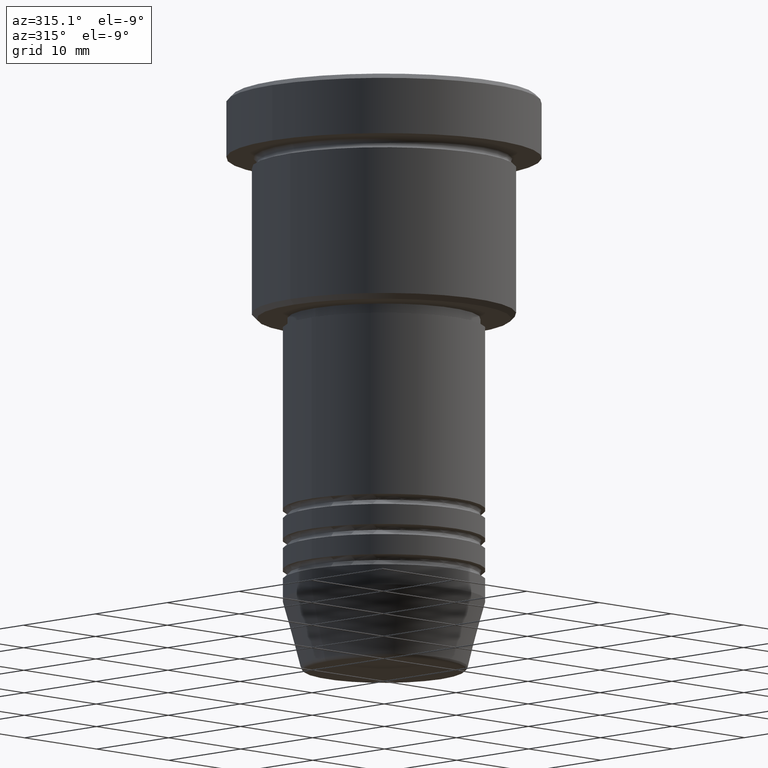
[diagram: clean part render]
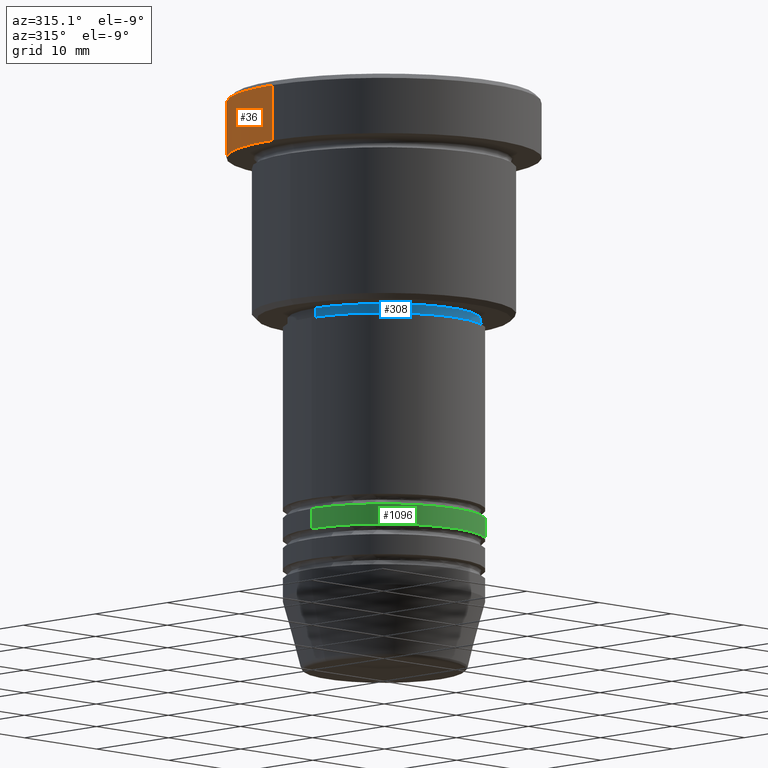
[diagram: same view with three faces highlighted in distinct colors, each labeled with its STEP entity id]
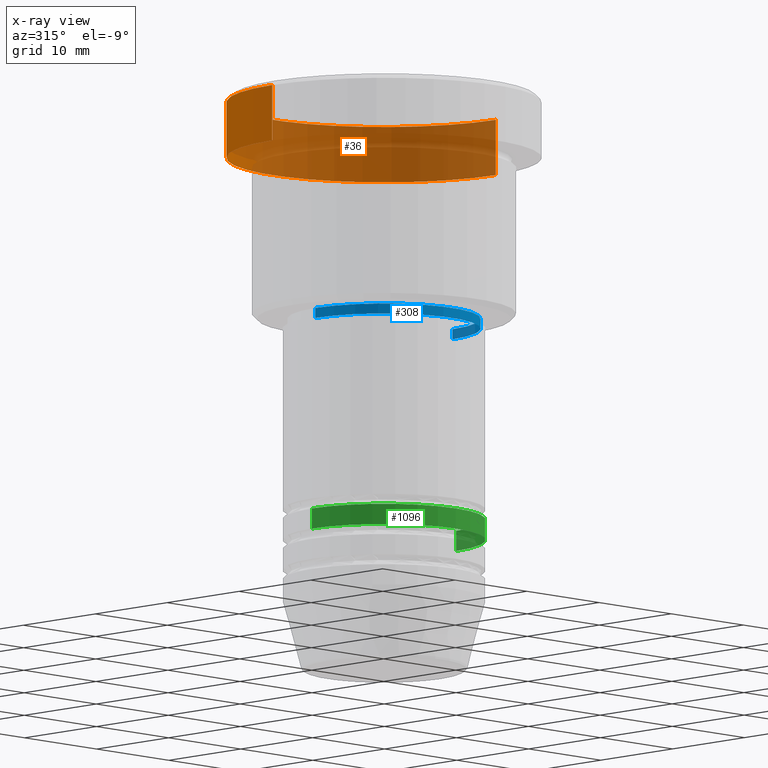
[diagram: x-ray of the same camera — body ghosted, the three highlighted faces saturated]
A machine part, auxiliary view with three faces highlighted in distinct colors.
The next image is the same camera in x-ray (body ghosted, the three faces saturated) — at least one of them is partly hidden behind the body in this view.
Their STEP definitions:

[orange] entity #36 — the highlighted cylindrical surface (partial cylindrical patch) has radius 15.5 mm, axis along (-0, -0, 1).
#24 = AXIS2_PLACEMENT_3D ( 'NONE', #816, #371, #904 ) ;
#36 = ADVANCED_FACE ( 'NONE', ( #630 ), #909, .T. ) ;
#48 = CARTESIAN_POINT ( 'NONE',  ( -15.50000000000000000, 1.898202538678397557E-15, 0.000000000000000000 ) ) ;
#128 = EDGE_CURVE ( 'NONE', #855, #678, #269, .T. ) ;
#137 = LINE ( 'NONE', #48, #1051 ) ;
#153 = VERTEX_POINT ( 'NONE', #1013 ) ;
#167 = AXIS2_PLACEMENT_3D ( 'NONE', #734, #1081, #999 ) ;
#204 = DIRECTION ( 'NONE',  ( 1.000000000000000000, 0.000000000000000000, 0.000000000000000000 ) ) ;
#222 = DIRECTION ( 'NONE',  ( -0.000000000000000000, -0.000000000000000000, 1.000000000000000000 ) ) ;
#261 = CARTESIAN_POINT ( 'NONE',  ( 0.000000000000000000, 0.000000000000000000, -0.4999999999999780176 ) ) ;
#269 = CIRCLE ( 'NONE', #1086, 15.50000000000000000 ) ;
#317 = EDGE_LOOP ( 'NONE', ( #531, #1020, #982, #670 ) ) ;
#371 = DIRECTION ( 'NONE',  ( -0.000000000000000000, -0.000000000000000000, 1.000000000000000000 ) ) ;
#373 = DIRECTION ( 'NONE',  ( 0.000000000000000000, 0.000000000000000000, -1.000000000000000000 ) ) ;
#388 = EDGE_CURVE ( 'NONE', #153, #855, #137, .T. ) ;
#413 = DIRECTION ( 'NONE',  ( -0.000000000000000000, -0.000000000000000000, 1.000000000000000000 ) ) ;
#416 = VERTEX_POINT ( 'NONE', #452 ) ;
#433 = EDGE_CURVE ( 'NONE', #416, #153, #786, .T. ) ;
#452 = CARTESIAN_POINT ( 'NONE',  ( 15.50000000000000000, 0.000000000000000000, -5.999999999999995559 ) ) ;
#489 = LINE ( 'NONE', #1040, #562 ) ;
#529 = CARTESIAN_POINT ( 'NONE',  ( 15.50000000000000000, 0.000000000000000000, -0.4999999999999780176 ) ) ;
#531 = ORIENTED_EDGE ( 'NONE', *, *, #433, .T. ) ;
#545 = EDGE_CURVE ( 'NONE', #416, #678, #489, .T. ) ;
#562 = VECTOR ( 'NONE', #222, 1000.000000000000000 ) ;
#630 = FACE_OUTER_BOUND ( 'NONE', #317, .T. ) ;
#670 = ORIENTED_EDGE ( 'NONE', *, *, #545, .F. ) ;
#678 = VERTEX_POINT ( 'NONE', #529 ) ;
#734 = CARTESIAN_POINT ( 'NONE',  ( 0.000000000000000000, 0.000000000000000000, 0.000000000000000000 ) ) ;
#786 = CIRCLE ( 'NONE', #24, 15.50000000000000000 ) ;
#816 = CARTESIAN_POINT ( 'NONE',  ( 0.000000000000000000, 0.000000000000000000, -5.999999999999995559 ) ) ;
#855 = VERTEX_POINT ( 'NONE', #1114 ) ;
#904 = DIRECTION ( 'NONE',  ( 1.000000000000000000, 0.000000000000000000, 0.000000000000000000 ) ) ;
#909 = CYLINDRICAL_SURFACE ( 'NONE', #167, 15.50000000000000000 ) ;
#982 = ORIENTED_EDGE ( 'NONE', *, *, #128, .T. ) ;
#999 = DIRECTION ( 'NONE',  ( 1.000000000000000000, 0.000000000000000000, 0.000000000000000000 ) ) ;
#1013 = CARTESIAN_POINT ( 'NONE',  ( -15.50000000000000000, 1.898202538678397557E-15, -5.999999999999995559 ) ) ;
#1020 = ORIENTED_EDGE ( 'NONE', *, *, #388, .T. ) ;
#1040 = CARTESIAN_POINT ( 'NONE',  ( 15.50000000000000000, 0.000000000000000000, 0.000000000000000000 ) ) ;
#1051 = VECTOR ( 'NONE', #413, 1000.000000000000000 ) ;
#1081 = DIRECTION ( 'NONE',  ( -0.000000000000000000, -0.000000000000000000, 1.000000000000000000 ) ) ;
#1086 = AXIS2_PLACEMENT_3D ( 'NONE', #261, #373, #204 ) ;
#1114 = CARTESIAN_POINT ( 'NONE',  ( -15.50000000000000000, 1.898202538678397557E-15, -0.4999999999999780176 ) ) ;

[blue] entity #308 — the highlighted cylindrical surface (partial cylindrical patch) has radius 9.5 mm, axis along (-0, -0, 1).
#53 = CYLINDRICAL_SURFACE ( 'NONE', #913, 9.500000000000000000 ) ;
#102 = DIRECTION ( 'NONE',  ( 1.000000000000000000, 0.000000000000000000, 0.000000000000000000 ) ) ;
#107 = DIRECTION ( 'NONE',  ( -0.000000000000000000, -0.000000000000000000, 1.000000000000000000 ) ) ;
#156 = AXIS2_PLACEMENT_3D ( 'NONE', #1125, #470, #1038 ) ;
#201 = LINE ( 'NONE', #573, #426 ) ;
#203 = ORIENTED_EDGE ( 'NONE', *, *, #1112, .T. ) ;
#209 = EDGE_CURVE ( 'NONE', #508, #694, #286, .T. ) ;
#286 = LINE ( 'NONE', #469, #1068 ) ;
#308 = ADVANCED_FACE ( 'NONE', ( #494 ), #53, .T. ) ;
#354 = DIRECTION ( 'NONE',  ( 1.000000000000000000, 0.000000000000000000, 0.000000000000000000 ) ) ;
#381 = CARTESIAN_POINT ( 'NONE',  ( 9.500000000000000000, 0.000000000000000000, -23.00000000000000000 ) ) ;
#426 = VECTOR ( 'NONE', #107, 1000.000000000000000 ) ;
#428 = ORIENTED_EDGE ( 'NONE', *, *, #871, .F. ) ;
#446 = EDGE_CURVE ( 'NONE', #988, #694, #691, .T. ) ;
#463 = AXIS2_PLACEMENT_3D ( 'NONE', #743, #725, #102 ) ;
#469 = CARTESIAN_POINT ( 'NONE',  ( 9.500000000000000000, 0.000000000000000000, 0.000000000000000000 ) ) ;
#470 = DIRECTION ( 'NONE',  ( -0.000000000000000000, -0.000000000000000000, 1.000000000000000000 ) ) ;
#494 = FACE_OUTER_BOUND ( 'NONE', #518, .T. ) ;
#503 = CARTESIAN_POINT ( 'NONE',  ( 0.000000000000000000, 0.000000000000000000, 0.000000000000000000 ) ) ;
#508 = VERTEX_POINT ( 'NONE', #381 ) ;
#510 = DIRECTION ( 'NONE',  ( -0.000000000000000000, -0.000000000000000000, 1.000000000000000000 ) ) ;
#518 = EDGE_LOOP ( 'NONE', ( #428, #203, #730, #954 ) ) ;
#573 = CARTESIAN_POINT ( 'NONE',  ( -9.500000000000000000, 1.163414459189985485E-15, 0.000000000000000000 ) ) ;
#691 = CIRCLE ( 'NONE', #463, 9.500000000000000000 ) ;
#694 = VERTEX_POINT ( 'NONE', #1104 ) ;
#725 = DIRECTION ( 'NONE',  ( -0.000000000000000000, -0.000000000000000000, 1.000000000000000000 ) ) ;
#730 = ORIENTED_EDGE ( 'NONE', *, *, #209, .T. ) ;
#731 = CARTESIAN_POINT ( 'NONE',  ( -9.500000000000000000, 1.163414459189985485E-15, -23.00000000000000000 ) ) ;
#735 = CARTESIAN_POINT ( 'NONE',  ( -9.500000000000000000, 1.163414459189985485E-15, -22.00000000000000000 ) ) ;
#743 = CARTESIAN_POINT ( 'NONE',  ( 0.000000000000000000, 0.000000000000000000, -22.00000000000000000 ) ) ;
#747 = VERTEX_POINT ( 'NONE', #731 ) ;
#871 = EDGE_CURVE ( 'NONE', #747, #988, #201, .T. ) ;
#913 = AXIS2_PLACEMENT_3D ( 'NONE', #503, #510, #354 ) ;
#954 = ORIENTED_EDGE ( 'NONE', *, *, #446, .F. ) ;
#988 = VERTEX_POINT ( 'NONE', #735 ) ;
#1036 = CIRCLE ( 'NONE', #156, 9.500000000000000000 ) ;
#1037 = DIRECTION ( 'NONE',  ( -0.000000000000000000, -0.000000000000000000, 1.000000000000000000 ) ) ;
#1038 = DIRECTION ( 'NONE',  ( 1.000000000000000000, 0.000000000000000000, 0.000000000000000000 ) ) ;
#1068 = VECTOR ( 'NONE', #1037, 1000.000000000000000 ) ;
#1104 = CARTESIAN_POINT ( 'NONE',  ( 9.500000000000000000, 0.000000000000000000, -22.00000000000000000 ) ) ;
#1112 = EDGE_CURVE ( 'NONE', #747, #508, #1036, .T. ) ;
#1125 = CARTESIAN_POINT ( 'NONE',  ( 0.000000000000000000, 0.000000000000000000, -23.00000000000000000 ) ) ;

[green] entity #1096 — the highlighted cylindrical surface (partial cylindrical patch) has radius 10 mm, axis along (-0, -0, 1).
#3 = EDGE_CURVE ( 'NONE', #488, #992, #276, .T. ) ;
#38 = CARTESIAN_POINT ( 'NONE',  ( 0.000000000000000000, 0.000000000000000000, 0.000000000000000000 ) ) ;
#62 = CARTESIAN_POINT ( 'NONE',  ( -10.00000000000000000, 1.224646799147353256E-15, -41.99999999999997868 ) ) ;
#103 = EDGE_CURVE ( 'NONE', #652, #992, #636, .T. ) ;
#148 = VECTOR ( 'NONE', #945, 1000.000000000000000 ) ;
#158 = ORIENTED_EDGE ( 'NONE', *, *, #885, .T. ) ;
#180 = CARTESIAN_POINT ( 'NONE',  ( 10.00000000000000000, 0.000000000000000000, -43.99999999999998579 ) ) ;
#205 = CYLINDRICAL_SURFACE ( 'NONE', #214, 10.00000000000000000 ) ;
#214 = AXIS2_PLACEMENT_3D ( 'NONE', #38, #572, #949 ) ;
#276 = LINE ( 'NONE', #555, #1011 ) ;
#280 = DIRECTION ( 'NONE',  ( 1.000000000000000000, 0.000000000000000000, 0.000000000000000000 ) ) ;
#301 = DIRECTION ( 'NONE',  ( 1.000000000000000000, 0.000000000000000000, 0.000000000000000000 ) ) ;
#329 = AXIS2_PLACEMENT_3D ( 'NONE', #390, #848, #301 ) ;
#390 = CARTESIAN_POINT ( 'NONE',  ( 0.000000000000000000, 0.000000000000000000, -43.99999999999998579 ) ) ;
#418 = CIRCLE ( 'NONE', #329, 10.00000000000000000 ) ;
#419 = AXIS2_PLACEMENT_3D ( 'NONE', #807, #986, #280 ) ;
#487 = LINE ( 'NONE', #589, #148 ) ;
#488 = VERTEX_POINT ( 'NONE', #180 ) ;
#539 = DIRECTION ( 'NONE',  ( -0.000000000000000000, -0.000000000000000000, 1.000000000000000000 ) ) ;
#555 = CARTESIAN_POINT ( 'NONE',  ( 10.00000000000000000, 0.000000000000000000, 0.000000000000000000 ) ) ;
#572 = DIRECTION ( 'NONE',  ( -0.000000000000000000, -0.000000000000000000, 1.000000000000000000 ) ) ;
#589 = CARTESIAN_POINT ( 'NONE',  ( -10.00000000000000000, 1.224646799147353256E-15, 0.000000000000000000 ) ) ;
#636 = CIRCLE ( 'NONE', #419, 10.00000000000000000 ) ;
#652 = VERTEX_POINT ( 'NONE', #62 ) ;
#762 = CARTESIAN_POINT ( 'NONE',  ( -10.00000000000000000, 1.224646799147353256E-15, -43.99999999999998579 ) ) ;
#780 = ORIENTED_EDGE ( 'NONE', *, *, #103, .F. ) ;
#801 = EDGE_LOOP ( 'NONE', ( #1092, #158, #1039, #780 ) ) ;
#807 = CARTESIAN_POINT ( 'NONE',  ( 0.000000000000000000, 0.000000000000000000, -41.99999999999997868 ) ) ;
#845 = FACE_OUTER_BOUND ( 'NONE', #801, .T. ) ;
#848 = DIRECTION ( 'NONE',  ( -0.000000000000000000, -0.000000000000000000, 1.000000000000000000 ) ) ;
#885 = EDGE_CURVE ( 'NONE', #1066, #488, #418, .T. ) ;
#899 = EDGE_CURVE ( 'NONE', #1066, #652, #487, .T. ) ;
#945 = DIRECTION ( 'NONE',  ( -0.000000000000000000, -0.000000000000000000, 1.000000000000000000 ) ) ;
#949 = DIRECTION ( 'NONE',  ( 1.000000000000000000, 0.000000000000000000, 0.000000000000000000 ) ) ;
#986 = DIRECTION ( 'NONE',  ( -0.000000000000000000, -0.000000000000000000, 1.000000000000000000 ) ) ;
#992 = VERTEX_POINT ( 'NONE', #1091 ) ;
#1011 = VECTOR ( 'NONE', #539, 1000.000000000000000 ) ;
#1039 = ORIENTED_EDGE ( 'NONE', *, *, #3, .T. ) ;
#1066 = VERTEX_POINT ( 'NONE', #762 ) ;
#1091 = CARTESIAN_POINT ( 'NONE',  ( 10.00000000000000000, 0.000000000000000000, -41.99999999999997868 ) ) ;
#1092 = ORIENTED_EDGE ( 'NONE', *, *, #899, .F. ) ;
#1096 = ADVANCED_FACE ( 'NONE', ( #845 ), #205, .T. ) ;